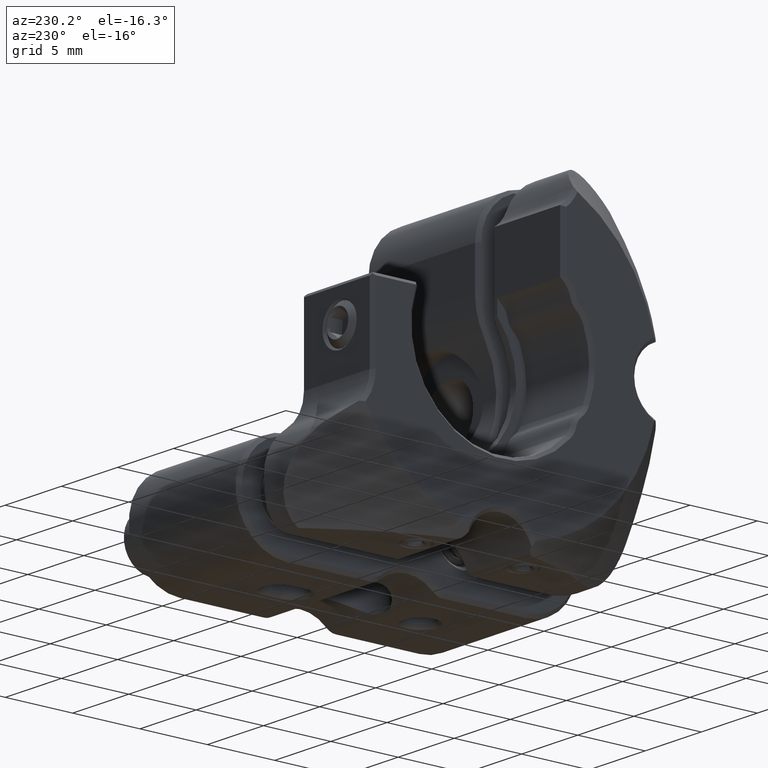
[diagram: clean part render]
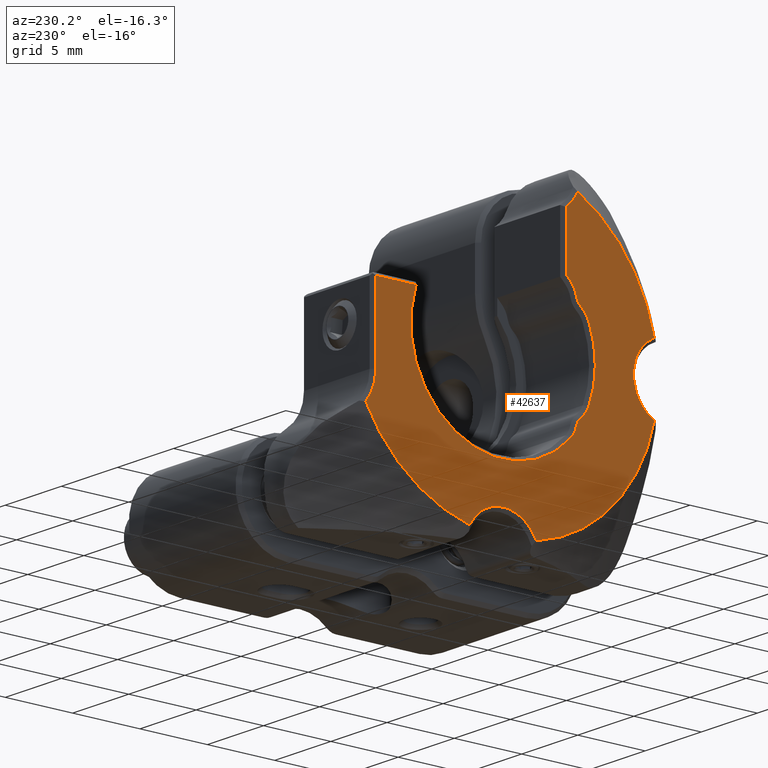
[diagram: same view with one face highlighted and labeled with its STEP entity id]
A machine part, auxiliary view. The second image highlights one B-rep face of the part: STEP entity #42637.
In plain terms, the highlighted planar face has unit normal (-1, -0, 0).
Its self-contained STEP definition (entity closure, byte-faithful):
#286 = VECTOR ( 'NONE', #35323, 1000.000000000000000 ) ;
#560 = AXIS2_PLACEMENT_3D ( 'NONE', #36201, #10568, #21905 ) ;
#815 = CARTESIAN_POINT ( 'NONE',  ( -13.35000000005295817, 2.470255413691988089, -11.23155546623430645 ) ) ;
#1958 = DIRECTION ( 'NONE',  ( 0.000000000000000000, 1.000000000000000000, 3.608224830031754812E-16 ) ) ;
#2493 = DIRECTION ( 'NONE',  ( 1.000000000000000000, -3.405445150445013331E-33, 3.165553788302583676E-17 ) ) ;
#3308 = PLANE ( 'NONE',  #27569 ) ;
#3548 = VERTEX_POINT ( 'NONE', #38548 ) ;
#3833 = ORIENTED_EDGE ( 'NONE', *, *, #40003, .T. ) ;
#4010 = EDGE_LOOP ( 'NONE', ( #16058, #26245, #28523, #15135, #21876, #26280, #11533, #36695, #22188, #19357, #36977, #37189, #16359, #7875, #29622, #8900, #12090, #3833, #37134 ) ) ;
#4038 = CARTESIAN_POINT ( 'NONE',  ( -13.35000000000000142, -4.690000000000003055, -1.598995344709274188E-13 ) ) ;
#4363 = AXIS2_PLACEMENT_3D ( 'NONE', #5017, #34513, #42008 ) ;
#5017 = CARTESIAN_POINT ( 'NONE',  ( -13.35000000004718501, -4.735037769300571853, -1.894575763409236835 ) ) ;
#5385 = VERTEX_POINT ( 'NONE', #6859 ) ;
#5591 = CARTESIAN_POINT ( 'NONE',  ( -13.35000000000000142, -3.469446951953614189E-15, 2.309999999999841069 ) ) ;
#6105 = CARTESIAN_POINT ( 'NONE',  ( -13.35000000007251408, -5.037840453274277763, -4.641407498672090348 ) ) ;
#6122 = CARTESIAN_POINT ( 'NONE',  ( -13.35000000009702426, -3.469446951953614189E-15, -1.582072770256474141E-13 ) ) ;
#6455 = DIRECTION ( 'NONE',  ( 0.000000000000000000, 1.000000000000000000, 4.818676322221476002E-15 ) ) ;
#6681 = VERTEX_POINT ( 'NONE', #11978 ) ;
#6859 = CARTESIAN_POINT ( 'NONE',  ( -13.35000000001311093, 6.448751817221536342, 2.309999999986732444 ) ) ;
#7784 = LINE ( 'NONE', #5591, #286 ) ;
#7854 = DIRECTION ( 'NONE',  ( 0.000000000000000000, -1.000000000000000000, -2.106449935087245012E-15 ) ) ;
#7875 = ORIENTED_EDGE ( 'NONE', *, *, #40829, .T. ) ;
#8660 = DIRECTION ( 'NONE',  ( 1.000000000000000000, -0.000000000000000000, -0.000000000000000000 ) ) ;
#8782 = DIRECTION ( 'NONE',  ( -1.000000000000000000, -0.000000000000000000, -0.000000000000000000 ) ) ;
#8900 = ORIENTED_EDGE ( 'NONE', *, *, #12171, .T. ) ;
#9021 = EDGE_CURVE ( 'NONE', #39116, #25497, #34113, .T. ) ;
#9235 = EDGE_CURVE ( 'NONE', #18740, #20920, #35668, .T. ) ;
#9446 = CARTESIAN_POINT ( 'NONE',  ( -13.35000000000000853, -3.469446951953614189E-15, -1.582072770256425168E-13 ) ) ;
#9778 = AXIS2_PLACEMENT_3D ( 'NONE', #43211, #35946, #44163 ) ;
#10568 = DIRECTION ( 'NONE',  ( 1.000000000000000000, -2.845123781528601215E-32, 7.885106709117011868E-17 ) ) ;
#10590 = CIRCLE ( 'NONE', #37609, 11.49999999999999467 ) ;
#10775 = DIRECTION ( 'NONE',  ( 1.000000000000000000, -1.400229679052137738E-32, 1.239088197054242178E-16 ) ) ;
#11373 = AXIS2_PLACEMENT_3D ( 'NONE', #32801, #47569, #29172 ) ;
#11533 = ORIENTED_EDGE ( 'NONE', *, *, #42910, .T. ) ;
#11978 = CARTESIAN_POINT ( 'NONE',  ( -13.34999999999884146, -5.530812164175499035, 10.08266417196445452 ) ) ;
#12090 = ORIENTED_EDGE ( 'NONE', *, *, #20181, .T. ) ;
#12171 = EDGE_CURVE ( 'NONE', #31062, #45357, #20038, .T. ) ;
#12468 = CARTESIAN_POINT ( 'NONE',  ( -13.35000000004849241, 9.449999999919262095, -3.245533683332120223 ) ) ;
#12634 = CARTESIAN_POINT ( 'NONE',  ( -13.35000000002512621, -2.470255413686832213, -11.23155546623682710 ) ) ;
#12879 = CIRCLE ( 'NONE', #22108, 0.8999999999881065360 ) ;
#13041 = VERTEX_POINT ( 'NONE', #15172 ) ;
#13268 = AXIS2_PLACEMENT_3D ( 'NONE', #43902, #10775, #36869 ) ;
#13456 = CARTESIAN_POINT ( 'NONE',  ( -13.35000000006759535, -3.469446951953614189E-15, -1.582072770256464801E-13 ) ) ;
#13905 = AXIS2_PLACEMENT_3D ( 'NONE', #18818, #25828, #14960 ) ;
#14175 = DIRECTION ( 'NONE',  ( -1.000000000000000000, -0.000000000000000000, 0.000000000000000000 ) ) ;
#14217 = CARTESIAN_POINT ( 'NONE',  ( -13.35000000000847287, -5.463481576223734315, 3.815125212425571899 ) ) ;
#14351 = CIRCLE ( 'NONE', #41385, 11.49999999999999289 ) ;
#14661 = CIRCLE ( 'NONE', #13905, 1.749999999988070210 ) ;
#14694 = VERTEX_POINT ( 'NONE', #14217 ) ;
#14960 = DIRECTION ( 'NONE',  ( 0.000000000000000000, -1.000000000000000000, -2.230358754842527630E-15 ) ) ;
#15135 = ORIENTED_EDGE ( 'NONE', *, *, #29625, .T. ) ;
#15172 = CARTESIAN_POINT ( 'NONE',  ( -13.35000000004368204, -6.359805631316026719, -2.544675290057500927 ) ) ;
#15441 = CARTESIAN_POINT ( 'NONE',  ( -13.35000000000000142, 9.449999999999990408, -1.547975045612625200E-13 ) ) ;
#15773 = EDGE_CURVE ( 'NONE', #31187, #42846, #33061, .T. ) ;
#15797 = AXIS2_PLACEMENT_3D ( 'NONE', #26535, #8660, #30413 ) ;
#16058 = ORIENTED_EDGE ( 'NONE', *, *, #44173, .T. ) ;
#16359 = ORIENTED_EDGE ( 'NONE', *, *, #16851, .T. ) ;
#16851 = EDGE_CURVE ( 'NONE', #27536, #23380, #23392, .T. ) ;
#18272 = DIRECTION ( 'NONE',  ( -1.000000000000000000, -0.000000000000000000, -0.000000000000000000 ) ) ;
#18279 = FACE_OUTER_BOUND ( 'NONE', #4010, .T. ) ;
#18289 = DIRECTION ( 'NONE',  ( 0.000000000000000000, 1.000000000000000000, 3.608224830031754319E-16 ) ) ;
#18740 = VERTEX_POINT ( 'NONE', #39936 ) ;
#18818 = CARTESIAN_POINT ( 'NONE',  ( -13.35000000005566356, -3.750800921362283713, 3.455646458812991373 ) ) ;
#19278 = AXIS2_PLACEMENT_3D ( 'NONE', #27764, #35985, #42532 ) ;
#19293 = DIRECTION ( 'NONE',  ( -0.000000000000000000, 3.608224830031759249E-16, -1.000000000000000000 ) ) ;
#19357 = ORIENTED_EDGE ( 'NONE', *, *, #9021, .T. ) ;
#20038 = CIRCLE ( 'NONE', #19278, 2.750000000011477486 ) ;
#20181 = EDGE_CURVE ( 'NONE', #45357, #40107, #14351, .T. ) ;
#20225 = AXIS2_PLACEMENT_3D ( 'NONE', #41449, #33955, #7854 ) ;
#20920 = VERTEX_POINT ( 'NONE', #25356 ) ;
#21011 = DIRECTION ( 'NONE',  ( 0.000000000000000000, 3.608224830031759249E-16, -1.000000000000000000 ) ) ;
#21301 = CARTESIAN_POINT ( 'NONE',  ( -13.35000000000000320, 9.449999999999990408, 2.309999999999844622 ) ) ;
#21350 = CIRCLE ( 'NONE', #9778, 3.250000000036834535 ) ;
#21876 = ORIENTED_EDGE ( 'NONE', *, *, #31166, .T. ) ;
#21905 = DIRECTION ( 'NONE',  ( 0.000000000000000000, -2.365532012686207102E-15, -1.000000000000000000 ) ) ;
#22108 = AXIS2_PLACEMENT_3D ( 'NONE', #28916, #18272, #6455 ) ;
#22188 = ORIENTED_EDGE ( 'NONE', *, *, #40886, .T. ) ;
#22795 = EDGE_CURVE ( 'NONE', #3548, #31062, #10590, .T. ) ;
#22863 = DIRECTION ( 'NONE',  ( -0.000000000000000000, 3.608224830031759249E-16, -1.000000000000000000 ) ) ;
#23380 = VERTEX_POINT ( 'NONE', #12468 ) ;
#23392 = LINE ( 'NONE', #15441, #32856 ) ;
#23514 = DIRECTION ( 'NONE',  ( 0.000000000000000000, 1.000000000000000000, 0.000000000000000000 ) ) ;
#23579 = LINE ( 'NONE', #4038, #26049 ) ;
#25049 = DIRECTION ( 'NONE',  ( 0.000000000000000000, -1.000000000000000000, -3.608224830031759249E-16 ) ) ;
#25114 = CARTESIAN_POINT ( 'NONE',  ( -13.35000000005566534, -3.469446951953614189E-15, -1.582072770256461014E-13 ) ) ;
#25356 = CARTESIAN_POINT ( 'NONE',  ( -13.35000000004539444, -6.359805631429713557, 2.544675290142445423 ) ) ;
#25497 = VERTEX_POINT ( 'NONE', #6105 ) ;
#25828 = DIRECTION ( 'NONE',  ( 1.000000000000000000, -0.000000000000000000, -0.000000000000000000 ) ) ;
#26049 = VECTOR ( 'NONE', #22863, 1000.000000000000000 ) ;
#26245 = ORIENTED_EDGE ( 'NONE', *, *, #44780, .T. ) ;
#26280 = ORIENTED_EDGE ( 'NONE', *, *, #9235, .T. ) ;
#26535 = CARTESIAN_POINT ( 'NONE',  ( -13.34999999999882014, -12.43999999999999950, -1.590801652502796442E-13 ) ) ;
#26703 = VERTEX_POINT ( 'NONE', #41719 ) ;
#27073 = CARTESIAN_POINT ( 'NONE',  ( -13.34999999999941167, -4.690000000000006608, 9.016648141076288425 ) ) ;
#27536 = VERTEX_POINT ( 'NONE', #21301 ) ;
#27569 = AXIS2_PLACEMENT_3D ( 'NONE', #47805, #14175, #25049 ) ;
#27764 = CARTESIAN_POINT ( 'NONE',  ( -13.35000000005566179, 0.000000000000000000, -12.44000000000015582 ) ) ;
#27808 = CIRCLE ( 'NONE', #28604, 0.9000000000788134225 ) ;
#28523 = ORIENTED_EDGE ( 'NONE', *, *, #15773, .T. ) ;
#28604 = AXIS2_PLACEMENT_3D ( 'NONE', #41908, #8782, #23514 ) ;
#28916 = CARTESIAN_POINT ( 'NONE',  ( -13.35000000003267928, -6.344288770224766338, -4.000000000000157208 ) ) ;
#29172 = DIRECTION ( 'NONE',  ( 0.000000000000000000, 1.000000000000000000, 2.137179322403425946E-15 ) ) ;
#29622 = ORIENTED_EDGE ( 'NONE', *, *, #22795, .T. ) ;
#29625 = EDGE_CURVE ( 'NONE', #42846, #14694, #14661, .T. ) ;
#30413 = DIRECTION ( 'NONE',  ( 0.000000000000000000, -1.000000000000000000, 5.273559366969475818E-16 ) ) ;
#30893 = CARTESIAN_POINT ( 'NONE',  ( -13.34999999999887699, -11.23155546624287737, -2.470255413666988975 ) ) ;
#31062 = VERTEX_POINT ( 'NONE', #815 ) ;
#31145 = CARTESIAN_POINT ( 'NONE',  ( -13.35000000000252385, -11.23155546623884860, 2.470255413676783807 ) ) ;
#31166 = EDGE_CURVE ( 'NONE', #14694, #18740, #27808, .T. ) ;
#31187 = VERTEX_POINT ( 'NONE', #43109 ) ;
#31354 = DIRECTION ( 'NONE',  ( 0.000000000000000000, 2.137179322403426340E-15, -1.000000000000000000 ) ) ;
#31489 = CIRCLE ( 'NONE', #4363, 1.749999999962536634 ) ;
#32801 = CARTESIAN_POINT ( 'NONE',  ( -13.35000000000000142, -3.469446951953614189E-15, -1.582072770256425168E-13 ) ) ;
#32856 = VECTOR ( 'NONE', #19293, 1000.000000000000000 ) ;
#32929 = AXIS2_PLACEMENT_3D ( 'NONE', #13456, #38616, #31354 ) ;
#33061 = CIRCLE ( 'NONE', #41560, 6.850000000062321348 ) ;
#33955 = DIRECTION ( 'NONE',  ( 1.000000000000000000, -0.000000000000000000, -0.000000000000000000 ) ) ;
#34113 = CIRCLE ( 'NONE', #13268, 1.750000000066682215 ) ;
#34513 = DIRECTION ( 'NONE',  ( 1.000000000000000000, 1.670449442197231425E-32, 1.239088197227310126E-16 ) ) ;
#34981 = EDGE_CURVE ( 'NONE', #5385, #27536, #7784, .T. ) ;
#35323 = DIRECTION ( 'NONE',  ( -0.000000000000000000, 1.000000000000000000, 3.608224830031759249E-16 ) ) ;
#35668 = CIRCLE ( 'NONE', #20225, 1.750000000022804425 ) ;
#35946 = DIRECTION ( 'NONE',  ( 1.000000000000000000, -0.000000000000000000, -0.000000000000000000 ) ) ;
#35985 = DIRECTION ( 'NONE',  ( 1.000000000000000000, -0.000000000000000000, -0.000000000000000000 ) ) ;
#36201 = CARTESIAN_POINT ( 'NONE',  ( -13.34999999999882014, -3.018032697638728390, 11.19999999999984297 ) ) ;
#36669 = CARTESIAN_POINT ( 'NONE',  ( -13.35000000000000497, -3.469446951953614189E-15, -1.582072770256425168E-13 ) ) ;
#36695 = ORIENTED_EDGE ( 'NONE', *, *, #46140, .T. ) ;
#36829 = CIRCLE ( 'NONE', #39933, 6.850000000103682041 ) ;
#36869 = DIRECTION ( 'NONE',  ( 0.000000000000000000, -2.230358754742337562E-15, -1.000000000000000000 ) ) ;
#36977 = ORIENTED_EDGE ( 'NONE', *, *, #46516, .T. ) ;
#37134 = ORIENTED_EDGE ( 'NONE', *, *, #44334, .T. ) ;
#37189 = ORIENTED_EDGE ( 'NONE', *, *, #34981, .T. ) ;
#37609 = AXIS2_PLACEMENT_3D ( 'NONE', #36669, #44419, #18289 ) ;
#38403 = VERTEX_POINT ( 'NONE', #27073 ) ;
#38548 = CARTESIAN_POINT ( 'NONE',  ( -13.35000000002061782, 10.19651788356335942, -5.317990508650789039 ) ) ;
#38616 = DIRECTION ( 'NONE',  ( 1.000000000000000000, -3.405445150445013331E-33, 3.165553788302583676E-17 ) ) ;
#39116 = VERTEX_POINT ( 'NONE', #47151 ) ;
#39406 = DIRECTION ( 'NONE',  ( 1.000000000000000000, -3.405445150445013331E-33, 3.165553788302583676E-17 ) ) ;
#39933 = AXIS2_PLACEMENT_3D ( 'NONE', #6122, #2493, #39939 ) ;
#39936 = CARTESIAN_POINT ( 'NONE',  ( -13.35000000002471410, -5.797750694403174698, 3.284950259251002258 ) ) ;
#39939 = DIRECTION ( 'NONE',  ( 0.000000000000000000, -1.415534356397074589E-15, -1.000000000000000000 ) ) ;
#40003 = EDGE_CURVE ( 'NONE', #40107, #43762, #45157, .T. ) ;
#40107 = VERTEX_POINT ( 'NONE', #30893 ) ;
#40829 = EDGE_CURVE ( 'NONE', #23380, #3548, #21350, .T. ) ;
#40886 = EDGE_CURVE ( 'NONE', #26703, #39116, #12879, .T. ) ;
#41385 = AXIS2_PLACEMENT_3D ( 'NONE', #9446, #45488, #1958 ) ;
#41449 = CARTESIAN_POINT ( 'NONE',  ( -13.35000000005060983, -4.735037769300571853, 1.894575763408918201 ) ) ;
#41560 = AXIS2_PLACEMENT_3D ( 'NONE', #25114, #39406, #21011 ) ;
#41719 = CARTESIAN_POINT ( 'NONE',  ( -13.35000000004239595, -5.797750694470565236, -3.284950259280198015 ) ) ;
#41908 = CARTESIAN_POINT ( 'NONE',  ( -13.34999999999882014, -6.344288770224762786, 3.999999999999844125 ) ) ;
#42008 = DIRECTION ( 'NONE',  ( 0.000000000000000000, -4.956352788611266834E-15, -1.000000000000000000 ) ) ;
#42256 = CIRCLE ( 'NONE', #560, 2.750000000010973000 ) ;
#42532 = DIRECTION ( 'NONE',  ( 0.000000000000000000, -1.000000000000000000, -1.261617073432412402E-15 ) ) ;
#42637 = ADVANCED_FACE ( 'NONE', ( #18279 ), #3308, .T. ) ;
#42846 = VERTEX_POINT ( 'NONE', #46981 ) ;
#42910 = EDGE_CURVE ( 'NONE', #20920, #13041, #36829, .T. ) ;
#43021 = CIRCLE ( 'NONE', #11373, 11.49999999999999645 ) ;
#43109 = CARTESIAN_POINT ( 'NONE',  ( -13.35000000003232401, -4.690000000004496350, 4.992634575100637129 ) ) ;
#43211 = CARTESIAN_POINT ( 'NONE',  ( -13.35000000004072973, 12.69999999999999929, -3.245533683332119335 ) ) ;
#43762 = VERTEX_POINT ( 'NONE', #31145 ) ;
#43902 = CARTESIAN_POINT ( 'NONE',  ( -13.35000000007743104, -3.750800921362283713, -3.455646458813308897 ) ) ;
#44163 = DIRECTION ( 'NONE',  ( 0.000000000000000000, -1.000000000000000000, -4.003208021439568190E-16 ) ) ;
#44173 = EDGE_CURVE ( 'NONE', #6681, #38403, #42256, .T. ) ;
#44334 = EDGE_CURVE ( 'NONE', #43762, #6681, #43021, .T. ) ;
#44419 = DIRECTION ( 'NONE',  ( -1.000000000000000000, 0.000000000000000000, -0.000000000000000000 ) ) ;
#44780 = EDGE_CURVE ( 'NONE', #38403, #31187, #23579, .T. ) ;
#45157 = CIRCLE ( 'NONE', #15797, 2.749999999985045740 ) ;
#45357 = VERTEX_POINT ( 'NONE', #12634 ) ;
#45488 = DIRECTION ( 'NONE',  ( -1.000000000000000000, 0.000000000000000000, -0.000000000000000000 ) ) ;
#46140 = EDGE_CURVE ( 'NONE', #13041, #26703, #31489, .T. ) ;
#46172 = CIRCLE ( 'NONE', #32929, 6.850000000074253137 ) ;
#46516 = EDGE_CURVE ( 'NONE', #25497, #5385, #46172, .T. ) ;
#46981 = CARTESIAN_POINT ( 'NONE',  ( -13.35000000005566356, -5.037840453151077647, 4.641407498620933936 ) ) ;
#47151 = CARTESIAN_POINT ( 'NONE',  ( -13.35000000006265530, -5.463481576319515476, -3.815125212434903101 ) ) ;
#47569 = DIRECTION ( 'NONE',  ( -1.000000000000000000, 0.000000000000000000, -0.000000000000000000 ) ) ;
#47805 = CARTESIAN_POINT ( 'NONE',  ( -13.35000000000000142, -3.469446951953614189E-15, -1.582072770256425168E-13 ) ) ;